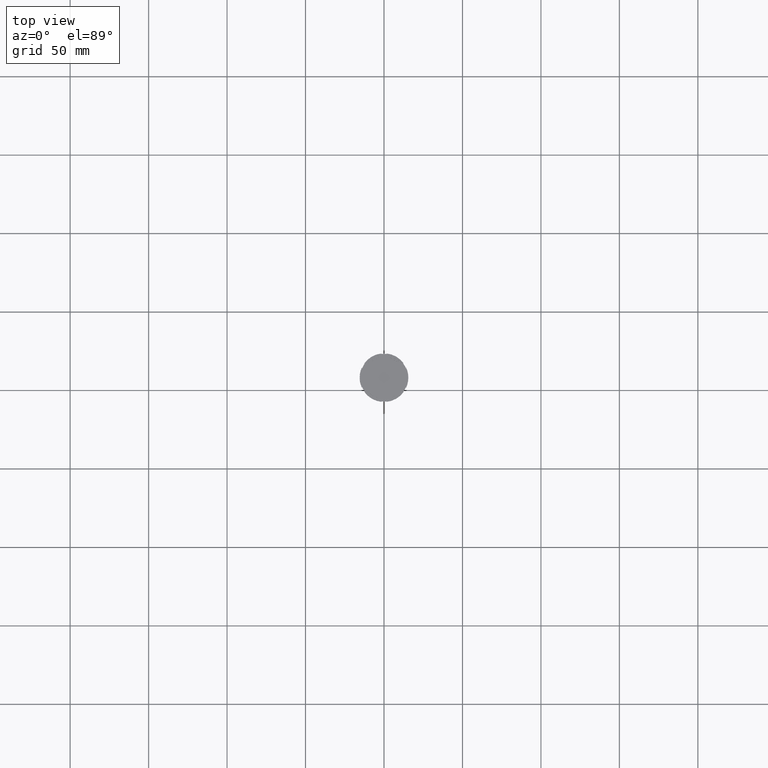
[diagram: clean part render]
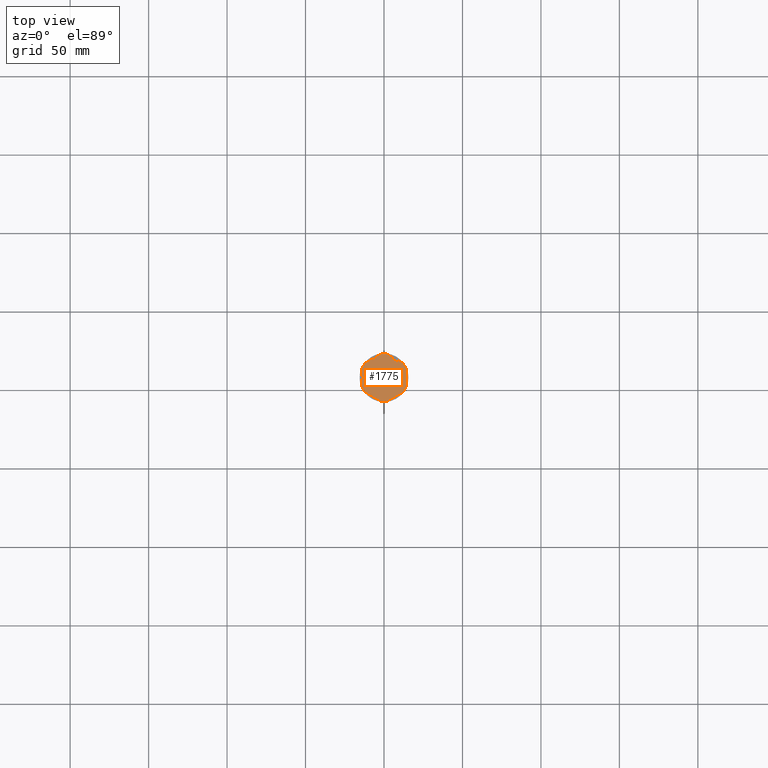
[diagram: same view with one face highlighted and labeled with its STEP entity id]
A machine part, top view. The second image highlights one B-rep face of the part: STEP entity #1775.
In plain terms, the highlighted planar face has unit normal (0, 0, 1).
Its self-contained STEP definition (entity closure, byte-faithful):
#12 = CIRCLE ( 'NONE', #2617, 13.50000000000000000 ) ;
#15 = DIRECTION ( 'NONE',  ( -0.8660254037844385966, 0.5000000000000001110, 0.000000000000000000 ) ) ;
#17 = VECTOR ( 'NONE', #801, 1000.000000000000000 ) ;
#28 = ORIENTED_EDGE ( 'NONE', *, *, #495, .F. ) ;
#34 = EDGE_LOOP ( 'NONE', ( #600, #1683 ) ) ;
#43 = DIRECTION ( 'NONE',  ( 0.000000000000000000, 0.000000000000000000, 1.000000000000000000 ) ) ;
#49 = CARTESIAN_POINT ( 'NONE',  ( 0.000000000000000000, 0.000000000000000000, -1.000000000000000000 ) ) ;
#57 = ORIENTED_EDGE ( 'NONE', *, *, #1171, .F. ) ;
#60 = AXIS2_PLACEMENT_3D ( 'NONE', #1164, #298, #2479 ) ;
#62 = EDGE_CURVE ( 'NONE', #940, #1675, #1731, .T. ) ;
#66 = VECTOR ( 'NONE', #2345, 1000.000000000000114 ) ;
#101 = CARTESIAN_POINT ( 'NONE',  ( -14.00000000000000178, -8.082903768654762899, -1.000000000000000000 ) ) ;
#118 = ORIENTED_EDGE ( 'NONE', *, *, #1073, .F. ) ;
#119 = VERTEX_POINT ( 'NONE', #2137 ) ;
#120 = CARTESIAN_POINT ( 'NONE',  ( 9.652380053229610013, 9.438302776877588229, -1.000000000000000888 ) ) ;
#128 = DIRECTION ( 'NONE',  ( -0.000000000000000000, -0.000000000000000000, -1.000000000000000000 ) ) ;
#131 = CARTESIAN_POINT ( 'NONE',  ( 0.000000000000000000, 0.000000000000000000, -1.000000000000000000 ) ) ;
#146 = DIRECTION ( 'NONE',  ( 1.000000000000000000, -5.329070518200752183E-15, 0.000000000000000000 ) ) ;
#171 = ORIENTED_EDGE ( 'NONE', *, *, #1335, .F. ) ;
#176 = CARTESIAN_POINT ( 'NONE',  ( 0.000000000000000000, 0.000000000000000000, -1.000000000000000000 ) ) ;
#188 = EDGE_CURVE ( 'NONE', #695, #301, #1368, .T. ) ;
#203 = VECTOR ( 'NONE', #15, 1000.000000000000000 ) ;
#206 = LINE ( 'NONE', #398, #2453 ) ;
#212 = VECTOR ( 'NONE', #2716, 1000.000000000000000 ) ;
#217 = AXIS2_PLACEMENT_3D ( 'NONE', #662, #1568, #1580 ) ;
#256 = DIRECTION ( 'NONE',  ( -2.311253228826398661E-16, -1.000000000000000000, 0.000000000000000000 ) ) ;
#289 = VERTEX_POINT ( 'NONE', #1065 ) ;
#298 = DIRECTION ( 'NONE',  ( -0.000000000000000000, -0.000000000000000000, -1.000000000000000000 ) ) ;
#301 = VERTEX_POINT ( 'NONE', #1499 ) ;
#314 = EDGE_CURVE ( 'NONE', #2380, #2712, #1370, .T. ) ;
#331 = EDGE_CURVE ( 'NONE', #445, #2395, #2135, .T. ) ;
#352 = DIRECTION ( 'NONE',  ( -0.000000000000000000, -0.000000000000000000, -1.000000000000000000 ) ) ;
#357 = VERTEX_POINT ( 'NONE', #2379 ) ;
#370 = CARTESIAN_POINT ( 'NONE',  ( 12.12640224719051751, -9.164625935592392025, -1.000000000000000000 ) ) ;
#374 = PLANE ( 'NONE',  #1937 ) ;
#384 = CARTESIAN_POINT ( 'NONE',  ( -8.673617379884035472E-16, -15.01110699893027167, -1.000000000000000888 ) ) ;
#398 = CARTESIAN_POINT ( 'NONE',  ( 14.00000000000000178, 8.082903768654762899, -1.000000000000000000 ) ) ;
#400 = AXIS2_PLACEMENT_3D ( 'NONE', #49, #2093, #1848 ) ;
#404 = CARTESIAN_POINT ( 'NONE',  ( 0.000000000000000000, 0.000000000000000000, -1.000000000000000000 ) ) ;
#407 = EDGE_CURVE ( 'NONE', #1675, #940, #1184, .T. ) ;
#409 = CIRCLE ( 'NONE', #2405, 15.19999999999999929 ) ;
#412 = EDGE_CURVE ( 'NONE', #1679, #2231, #12, .T. ) ;
#431 = FACE_BOUND ( 'NONE', #2360, .T. ) ;
#432 = CARTESIAN_POINT ( 'NONE',  ( 0.000000000000000000, 15.01110699893027167, -1.000000000000000888 ) ) ;
#445 = VERTEX_POINT ( 'NONE', #1253 ) ;
#449 = LINE ( 'NONE', #2413, #203 ) ;
#455 = CIRCLE ( 'NONE', #1524, 13.50000000000000000 ) ;
#460 = ORIENTED_EDGE ( 'NONE', *, *, #2302, .F. ) ;
#462 = CARTESIAN_POINT ( 'NONE',  ( 12.12640224719051574, 9.164625935592399131, -1.000000000000000000 ) ) ;
#465 = EDGE_CURVE ( 'NONE', #2712, #2380, #449, .T. ) ;
#487 = DIRECTION ( 'NONE',  ( 0.000000000000000000, 0.000000000000000000, 1.000000000000000000 ) ) ;
#495 = EDGE_CURVE ( 'NONE', #1209, #1965, #1741, .T. ) ;
#499 = VECTOR ( 'NONE', #2030, 1000.000000000000000 ) ;
#512 = CARTESIAN_POINT ( 'NONE',  ( -9.652380053229617118, 9.438302776877577571, -1.000000000000000888 ) ) ;
#534 = CARTESIAN_POINT ( 'NONE',  ( 13.00000000000000178, -3.640054944640254142, -1.000000000000000888 ) ) ;
#568 = EDGE_CURVE ( 'NONE', #2231, #1679, #1089, .T. ) ;
#576 = VECTOR ( 'NONE', #2801, 999.9999999999998863 ) ;
#580 = DIRECTION ( 'NONE',  ( 0.000000000000000000, 0.000000000000000000, 1.000000000000000000 ) ) ;
#597 = ORIENTED_EDGE ( 'NONE', *, *, #1366, .T. ) ;
#600 = ORIENTED_EDGE ( 'NONE', *, *, #2265, .F. ) ;
#615 = DIRECTION ( 'NONE',  ( -0.000000000000000000, -0.000000000000000000, -1.000000000000000000 ) ) ;
#616 = ORIENTED_EDGE ( 'NONE', *, *, #1919, .F. ) ;
#652 = FACE_BOUND ( 'NONE', #1066, .T. ) ;
#662 = CARTESIAN_POINT ( 'NONE',  ( 0.000000000000000000, 0.000000000000000000, -1.000000000000000000 ) ) ;
#673 = EDGE_CURVE ( 'NONE', #2317, #2395, #1143, .T. ) ;
#676 = VERTEX_POINT ( 'NONE', #1392 ) ;
#695 = VERTEX_POINT ( 'NONE', #1609 ) ;
#718 = CARTESIAN_POINT ( 'NONE',  ( -13.00000000000000178, -3.640054944640251033, -1.000000000000000888 ) ) ;
#721 = CIRCLE ( 'NONE', #2066, 15.19999999999999929 ) ;
#759 = VECTOR ( 'NONE', #1933, 1000.000000000000000 ) ;
#764 = ORIENTED_EDGE ( 'NONE', *, *, #1534, .T. ) ;
#772 = CARTESIAN_POINT ( 'NONE',  ( -3.347619946770386434, 13.07835772151782905, -1.000000000000000888 ) ) ;
#786 = CARTESIAN_POINT ( 'NONE',  ( 14.00000000000000000, 5.919459434779493989, -1.000000000000000000 ) ) ;
#789 = VERTEX_POINT ( 'NONE', #370 ) ;
#791 = DIRECTION ( 'NONE',  ( 1.000000000000000000, 0.000000000000000000, 0.000000000000000000 ) ) ;
#793 = EDGE_CURVE ( 'NONE', #289, #676, #1899, .T. ) ;
#801 = DIRECTION ( 'NONE',  ( -0.8660254037844387076, -0.4999999999999999445, 0.000000000000000000 ) ) ;
#805 = DIRECTION ( 'NONE',  ( 0.000000000000000000, 0.000000000000000000, 1.000000000000000000 ) ) ;
#836 = FACE_BOUND ( 'NONE', #1976, .T. ) ;
#843 = DIRECTION ( 'NONE',  ( -0.8660254037844387076, 0.4999999999999997780, 0.000000000000000000 ) ) ;
#847 = ORIENTED_EDGE ( 'NONE', *, *, #2130, .F. ) ;
#856 = VERTEX_POINT ( 'NONE', #1333 ) ;
#869 = AXIS2_PLACEMENT_3D ( 'NONE', #2046, #43, #934 ) ;
#928 = DIRECTION ( 'NONE',  ( 1.000000000000000000, 0.000000000000000000, 0.000000000000000000 ) ) ;
#933 = LINE ( 'NONE', #2226, #499 ) ;
#934 = DIRECTION ( 'NONE',  ( 1.000000000000000000, 0.000000000000000000, 0.000000000000000000 ) ) ;
#940 = VERTEX_POINT ( 'NONE', #1550 ) ;
#965 = ORIENTED_EDGE ( 'NONE', *, *, #673, .F. ) ;
#1002 = VECTOR ( 'NONE', #2138, 1000.000000000000114 ) ;
#1007 = ORIENTED_EDGE ( 'NONE', *, *, #412, .F. ) ;
#1025 = DIRECTION ( 'NONE',  ( 0.000000000000000000, 0.000000000000000000, 1.000000000000000000 ) ) ;
#1065 = CARTESIAN_POINT ( 'NONE',  ( 9.652380053229613566, -9.438302776877582900, -1.000000000000000888 ) ) ;
#1066 = EDGE_LOOP ( 'NONE', ( #2653, #2300 ) ) ;
#1073 = EDGE_CURVE ( 'NONE', #2621, #856, #721, .T. ) ;
#1077 = EDGE_LOOP ( 'NONE', ( #460, #57, #616 ) ) ;
#1087 = VERTEX_POINT ( 'NONE', #1110 ) ;
#1089 = LINE ( 'NONE', #2239, #2483 ) ;
#1110 = CARTESIAN_POINT ( 'NONE',  ( -14.00000000000000178, 5.919459434779493989, -1.000000000000000000 ) ) ;
#1131 = ORIENTED_EDGE ( 'NONE', *, *, #465, .F. ) ;
#1139 = DIRECTION ( 'NONE',  ( 0.8660254037844385966, 0.5000000000000000000, 0.000000000000000000 ) ) ;
#1143 = CIRCLE ( 'NONE', #60, 15.19999999999999929 ) ;
#1158 = EDGE_CURVE ( 'NONE', #1087, #1379, #2443, .T. ) ;
#1164 = CARTESIAN_POINT ( 'NONE',  ( 0.000000000000000000, 0.000000000000000000, -1.000000000000000000 ) ) ;
#1167 = DIRECTION ( 'NONE',  ( 1.000000000000000000, 0.000000000000000000, 0.000000000000000000 ) ) ;
#1171 = EDGE_CURVE ( 'NONE', #2193, #2342, #1371, .T. ) ;
#1184 = CIRCLE ( 'NONE', #2198, 13.50000000000000000 ) ;
#1192 = VERTEX_POINT ( 'NONE', #1630 ) ;
#1196 = ORIENTED_EDGE ( 'NONE', *, *, #568, .F. ) ;
#1209 = VERTEX_POINT ( 'NONE', #512 ) ;
#1219 = CARTESIAN_POINT ( 'NONE',  ( 0.000000000000000000, 0.000000000000000000, -1.000000000000000000 ) ) ;
#1223 = CARTESIAN_POINT ( 'NONE',  ( 0.000000000000000000, 16.16580753730952225, -1.000000000000000000 ) ) ;
#1240 = VECTOR ( 'NONE', #1139, 1000.000000000000227 ) ;
#1247 = DIRECTION ( 'NONE',  ( 1.000000000000000000, 0.000000000000000000, 0.000000000000000000 ) ) ;
#1253 = CARTESIAN_POINT ( 'NONE',  ( 14.00000000000000000, -5.919459434779497542, -1.000000000000000000 ) ) ;
#1265 = DIRECTION ( 'NONE',  ( 1.000000000000000000, 0.000000000000000000, -0.000000000000000000 ) ) ;
#1267 = ORIENTED_EDGE ( 'NONE', *, *, #314, .F. ) ;
#1280 = CARTESIAN_POINT ( 'NONE',  ( 14.00000000000000000, -8.082903768654761123, -1.000000000000000000 ) ) ;
#1299 = DIRECTION ( 'NONE',  ( 1.000000000000000000, 0.000000000000000000, 0.000000000000000000 ) ) ;
#1333 = CARTESIAN_POINT ( 'NONE',  ( -1.873597752809485151, -15.08408537037189312, -1.000000000000000000 ) ) ;
#1335 = EDGE_CURVE ( 'NONE', #445, #789, #1611, .T. ) ;
#1340 = AXIS2_PLACEMENT_3D ( 'NONE', #2339, #1025, #1247 ) ;
#1353 = EDGE_LOOP ( 'NONE', ( #1007, #1196 ) ) ;
#1357 = LINE ( 'NONE', #2845, #1240 ) ;
#1366 = EDGE_CURVE ( 'NONE', #1192, #1379, #2820, .T. ) ;
#1368 = CIRCLE ( 'NONE', #1738, 15.19999999999999929 ) ;
#1370 = CIRCLE ( 'NONE', #2062, 13.50000000000000000 ) ;
#1371 = LINE ( 'NONE', #1603, #212 ) ;
#1379 = VERTEX_POINT ( 'NONE', #2834 ) ;
#1392 = CARTESIAN_POINT ( 'NONE',  ( 3.347619946770387322, -13.07835772151783083, -1.000000000000000888 ) ) ;
#1399 = CARTESIAN_POINT ( 'NONE',  ( 1.873597752809482486, -15.08408537037188779, -1.000000000000000000 ) ) ;
#1437 = DIRECTION ( 'NONE',  ( -0.000000000000000000, -0.000000000000000000, -1.000000000000000000 ) ) ;
#1449 = CARTESIAN_POINT ( 'NONE',  ( 0.000000000000000000, 0.000000000000000000, -1.000000000000000000 ) ) ;
#1453 = DIRECTION ( 'NONE',  ( 1.000000000000000000, 0.000000000000000000, 0.000000000000000000 ) ) ;
#1485 = DIRECTION ( 'NONE',  ( 1.000000000000000000, 0.000000000000000000, 0.000000000000000000 ) ) ;
#1499 = CARTESIAN_POINT ( 'NONE',  ( -14.00000000000000178, -5.919459434779493989, -1.000000000000000000 ) ) ;
#1512 = DIRECTION ( 'NONE',  ( 0.000000000000000000, 0.000000000000000000, 1.000000000000000000 ) ) ;
#1524 = AXIS2_PLACEMENT_3D ( 'NONE', #1853, #487, #2736 ) ;
#1534 = EDGE_CURVE ( 'NONE', #2621, #789, #1357, .T. ) ;
#1550 = CARTESIAN_POINT ( 'NONE',  ( 3.347619946770397537, 13.07835772151782905, -1.000000000000000888 ) ) ;
#1568 = DIRECTION ( 'NONE',  ( 0.000000000000000000, 0.000000000000000000, 1.000000000000000000 ) ) ;
#1580 = DIRECTION ( 'NONE',  ( 1.000000000000000000, 0.000000000000000000, 0.000000000000000000 ) ) ;
#1595 = EDGE_CURVE ( 'NONE', #695, #856, #2247, .T. ) ;
#1603 = CARTESIAN_POINT ( 'NONE',  ( -13.00000000000000178, 7.505553499465134060, -1.000000000000000888 ) ) ;
#1609 = CARTESIAN_POINT ( 'NONE',  ( -12.12640224719051218, -9.164625935592404460, -1.000000000000000000 ) ) ;
#1611 = CIRCLE ( 'NONE', #2118, 15.19999999999999929 ) ;
#1630 = CARTESIAN_POINT ( 'NONE',  ( -1.873597752809482486, 15.08408537037188957, -1.000000000000000000 ) ) ;
#1641 = ORIENTED_EDGE ( 'NONE', *, *, #2555, .T. ) ;
#1675 = VERTEX_POINT ( 'NONE', #120 ) ;
#1679 = VERTEX_POINT ( 'NONE', #534 ) ;
#1683 = ORIENTED_EDGE ( 'NONE', *, *, #793, .F. ) ;
#1728 = FACE_OUTER_BOUND ( 'NONE', #2002, .T. ) ;
#1731 = LINE ( 'NONE', #2162, #576 ) ;
#1738 = AXIS2_PLACEMENT_3D ( 'NONE', #1219, #1437, #1167 ) ;
#1741 = LINE ( 'NONE', #432, #2152 ) ;
#1753 = CIRCLE ( 'NONE', #217, 13.50000000000000000 ) ;
#1775 = ADVANCED_FACE ( 'NONE', ( #652, #2829, #1947, #431, #2158, #836, #1728 ), #374, .T. ) ;
#1794 = ORIENTED_EDGE ( 'NONE', *, *, #331, .T. ) ;
#1822 = EDGE_CURVE ( 'NONE', #1087, #301, #933, .T. ) ;
#1835 = ORIENTED_EDGE ( 'NONE', *, *, #2145, .F. ) ;
#1846 = CIRCLE ( 'NONE', #1340, 13.50000000000000000 ) ;
#1848 = DIRECTION ( 'NONE',  ( 1.000000000000000000, 0.000000000000000000, 0.000000000000000000 ) ) ;
#1850 = CARTESIAN_POINT ( 'NONE',  ( -3.347619946770386434, -13.07835772151782905, -1.000000000000000888 ) ) ;
#1853 = CARTESIAN_POINT ( 'NONE',  ( 0.000000000000000000, 0.000000000000000000, -1.000000000000000000 ) ) ;
#1898 = CARTESIAN_POINT ( 'NONE',  ( -13.00000000000000178, 3.640054944640251033, -1.000000000000000888 ) ) ;
#1899 = LINE ( 'NONE', #384, #17 ) ;
#1919 = EDGE_CURVE ( 'NONE', #357, #2193, #1753, .T. ) ;
#1933 = DIRECTION ( 'NONE',  ( 1.073081856240827950E-16, 1.000000000000000000, 0.000000000000000000 ) ) ;
#1937 = AXIS2_PLACEMENT_3D ( 'NONE', #2638, #805, #1265 ) ;
#1947 = FACE_BOUND ( 'NONE', #34, .T. ) ;
#1965 = VERTEX_POINT ( 'NONE', #772 ) ;
#1976 = EDGE_LOOP ( 'NONE', ( #1835, #28 ) ) ;
#2002 = EDGE_LOOP ( 'NONE', ( #1794, #965, #1641, #847, #597, #2469, #2698, #2770, #2095, #118, #764, #171 ) ) ;
#2030 = DIRECTION ( 'NONE',  ( 0.000000000000000000, -1.000000000000000000, 0.000000000000000000 ) ) ;
#2046 = CARTESIAN_POINT ( 'NONE',  ( 0.000000000000000000, 0.000000000000000000, -1.000000000000000000 ) ) ;
#2062 = AXIS2_PLACEMENT_3D ( 'NONE', #1449, #1512, #791 ) ;
#2066 = AXIS2_PLACEMENT_3D ( 'NONE', #2879, #615, #928 ) ;
#2093 = DIRECTION ( 'NONE',  ( -0.000000000000000000, -0.000000000000000000, -1.000000000000000000 ) ) ;
#2095 = ORIENTED_EDGE ( 'NONE', *, *, #1595, .T. ) ;
#2118 = AXIS2_PLACEMENT_3D ( 'NONE', #176, #128, #1453 ) ;
#2130 = EDGE_CURVE ( 'NONE', #1192, #119, #409, .T. ) ;
#2135 = LINE ( 'NONE', #1280, #759 ) ;
#2137 = CARTESIAN_POINT ( 'NONE',  ( 1.873597752809481598, 15.08408537037189134, -1.000000000000000000 ) ) ;
#2138 = DIRECTION ( 'NONE',  ( -0.8660254037844385966, -0.4999999999999999445, 0.000000000000000000 ) ) ;
#2145 = EDGE_CURVE ( 'NONE', #1965, #1209, #1846, .T. ) ;
#2152 = VECTOR ( 'NONE', #2652, 1000.000000000000000 ) ;
#2158 = FACE_BOUND ( 'NONE', #1077, .T. ) ;
#2162 = CARTESIAN_POINT ( 'NONE',  ( 13.00000000000000355, 7.505553499465135836, -1.000000000000000888 ) ) ;
#2169 = CIRCLE ( 'NONE', #869, 13.50000000000000000 ) ;
#2193 = VERTEX_POINT ( 'NONE', #718 ) ;
#2198 = AXIS2_PLACEMENT_3D ( 'NONE', #2583, #580, #1485 ) ;
#2226 = CARTESIAN_POINT ( 'NONE',  ( -14.00000000000000178, 8.082903768654759347, -1.000000000000000000 ) ) ;
#2231 = VERTEX_POINT ( 'NONE', #2281 ) ;
#2239 = CARTESIAN_POINT ( 'NONE',  ( 13.00000000000000000, -7.505553499465137612, -1.000000000000000888 ) ) ;
#2247 = LINE ( 'NONE', #101, #66 ) ;
#2265 = EDGE_CURVE ( 'NONE', #676, #289, #455, .T. ) ;
#2281 = CARTESIAN_POINT ( 'NONE',  ( 13.00000000000000178, 3.640054944640248369, -1.000000000000000888 ) ) ;
#2300 = ORIENTED_EDGE ( 'NONE', *, *, #62, .F. ) ;
#2302 = EDGE_CURVE ( 'NONE', #2342, #357, #2169, .T. ) ;
#2317 = VERTEX_POINT ( 'NONE', #462 ) ;
#2339 = CARTESIAN_POINT ( 'NONE',  ( 0.000000000000000000, 0.000000000000000000, -1.000000000000000000 ) ) ;
#2342 = VERTEX_POINT ( 'NONE', #1898 ) ;
#2345 = DIRECTION ( 'NONE',  ( 0.8660254037844388186, -0.4999999999999997780, 0.000000000000000000 ) ) ;
#2360 = EDGE_LOOP ( 'NONE', ( #1267, #1131 ) ) ;
#2379 = CARTESIAN_POINT ( 'NONE',  ( -13.50000000000000000, 0.000000000000000000, -1.000000000000000000 ) ) ;
#2380 = VERTEX_POINT ( 'NONE', #2577 ) ;
#2395 = VERTEX_POINT ( 'NONE', #786 ) ;
#2405 = AXIS2_PLACEMENT_3D ( 'NONE', #131, #352, #146 ) ;
#2413 = CARTESIAN_POINT ( 'NONE',  ( -13.00000000000000178, -7.505553499465134060, -1.000000000000000888 ) ) ;
#2443 = CIRCLE ( 'NONE', #400, 15.19999999999999929 ) ;
#2453 = VECTOR ( 'NONE', #843, 1000.000000000000114 ) ;
#2469 = ORIENTED_EDGE ( 'NONE', *, *, #1158, .F. ) ;
#2479 = DIRECTION ( 'NONE',  ( 1.000000000000000000, -9.769962616701377556E-15, 0.000000000000000000 ) ) ;
#2483 = VECTOR ( 'NONE', #256, 1000.000000000000000 ) ;
#2555 = EDGE_CURVE ( 'NONE', #2317, #119, #206, .T. ) ;
#2577 = CARTESIAN_POINT ( 'NONE',  ( -9.652380053229617118, -9.438302776877577571, -1.000000000000000888 ) ) ;
#2583 = CARTESIAN_POINT ( 'NONE',  ( 0.000000000000000000, 0.000000000000000000, -1.000000000000000000 ) ) ;
#2600 = DIRECTION ( 'NONE',  ( 0.000000000000000000, 0.000000000000000000, 1.000000000000000000 ) ) ;
#2617 = AXIS2_PLACEMENT_3D ( 'NONE', #404, #2600, #1299 ) ;
#2621 = VERTEX_POINT ( 'NONE', #1399 ) ;
#2638 = CARTESIAN_POINT ( 'NONE',  ( 0.000000000000000000, 0.000000000000000000, -1.000000000000000000 ) ) ;
#2652 = DIRECTION ( 'NONE',  ( 0.8660254037844385966, 0.5000000000000001110, -0.000000000000000000 ) ) ;
#2653 = ORIENTED_EDGE ( 'NONE', *, *, #407, .F. ) ;
#2698 = ORIENTED_EDGE ( 'NONE', *, *, #1822, .T. ) ;
#2712 = VERTEX_POINT ( 'NONE', #1850 ) ;
#2716 = DIRECTION ( 'NONE',  ( 0.000000000000000000, 1.000000000000000000, 0.000000000000000000 ) ) ;
#2736 = DIRECTION ( 'NONE',  ( 1.000000000000000000, 0.000000000000000000, 0.000000000000000000 ) ) ;
#2770 = ORIENTED_EDGE ( 'NONE', *, *, #188, .F. ) ;
#2801 = DIRECTION ( 'NONE',  ( 0.8660254037844387076, -0.5000000000000001110, 0.000000000000000000 ) ) ;
#2820 = LINE ( 'NONE', #1223, #1002 ) ;
#2829 = FACE_BOUND ( 'NONE', #1353, .T. ) ;
#2834 = CARTESIAN_POINT ( 'NONE',  ( -12.12640224719051751, 9.164625935592393802, -1.000000000000000000 ) ) ;
#2845 = CARTESIAN_POINT ( 'NONE',  ( 1.740335835716699810E-15, -16.16580753730952225, -1.000000000000000000 ) ) ;
#2879 = CARTESIAN_POINT ( 'NONE',  ( 0.000000000000000000, 0.000000000000000000, -1.000000000000000000 ) ) ;